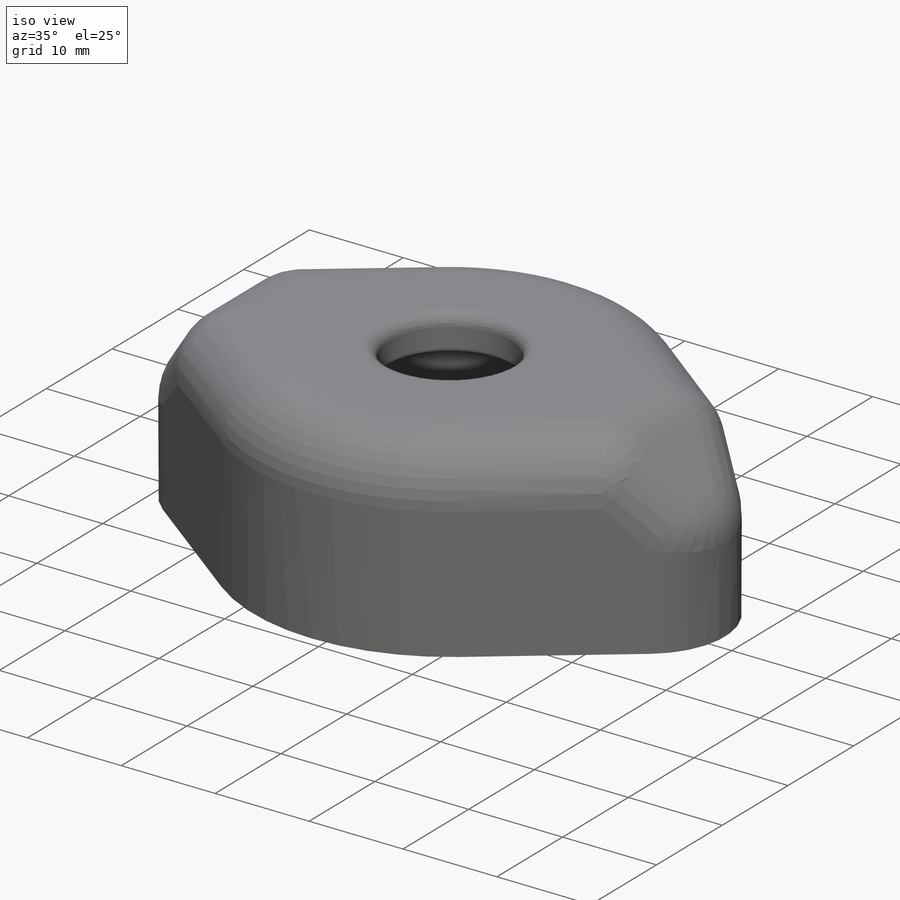
[diagram: iso view]
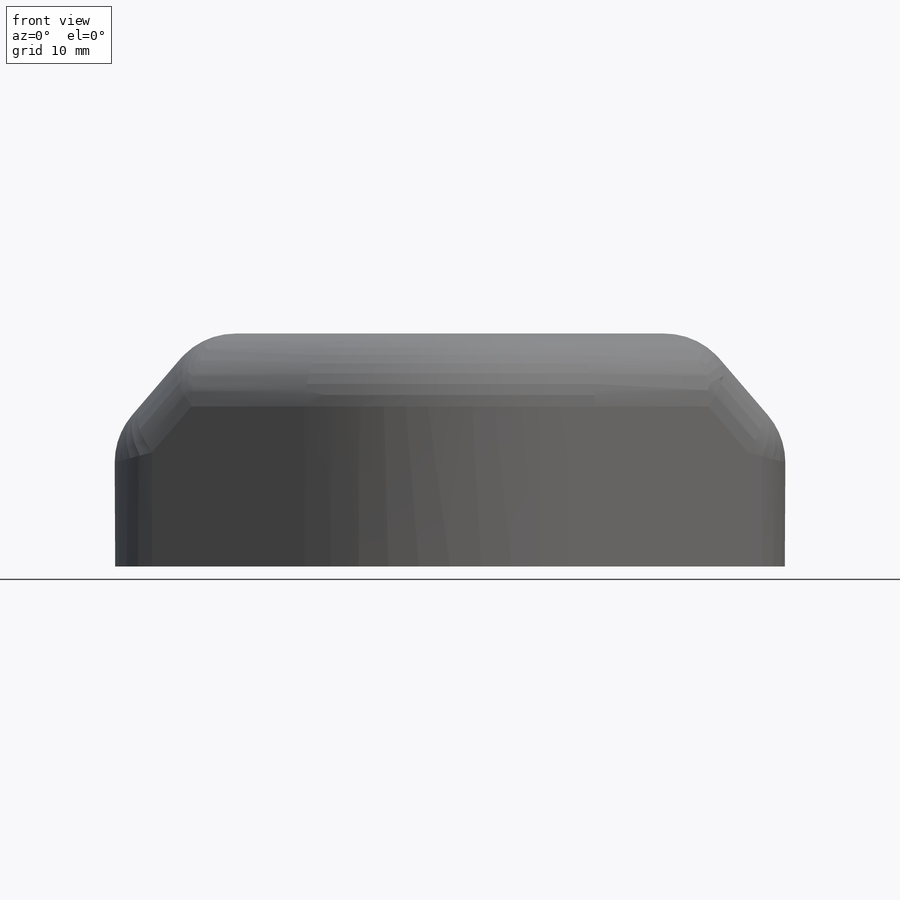
[diagram: front view]
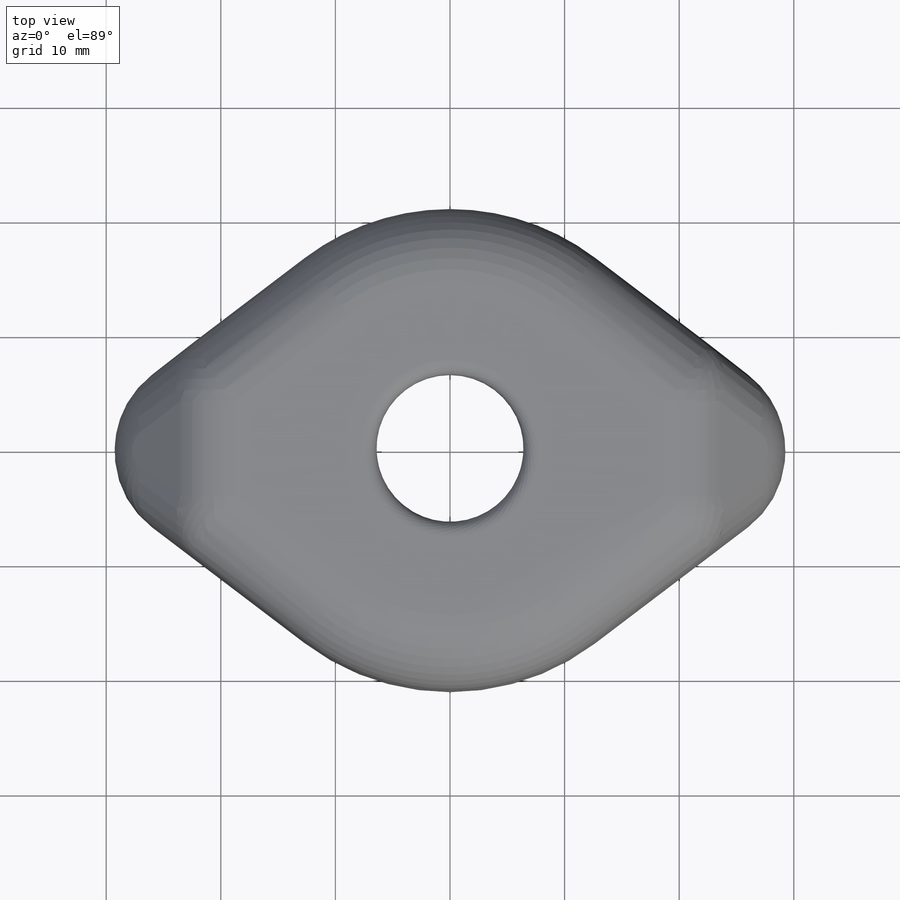
[diagram: top view]
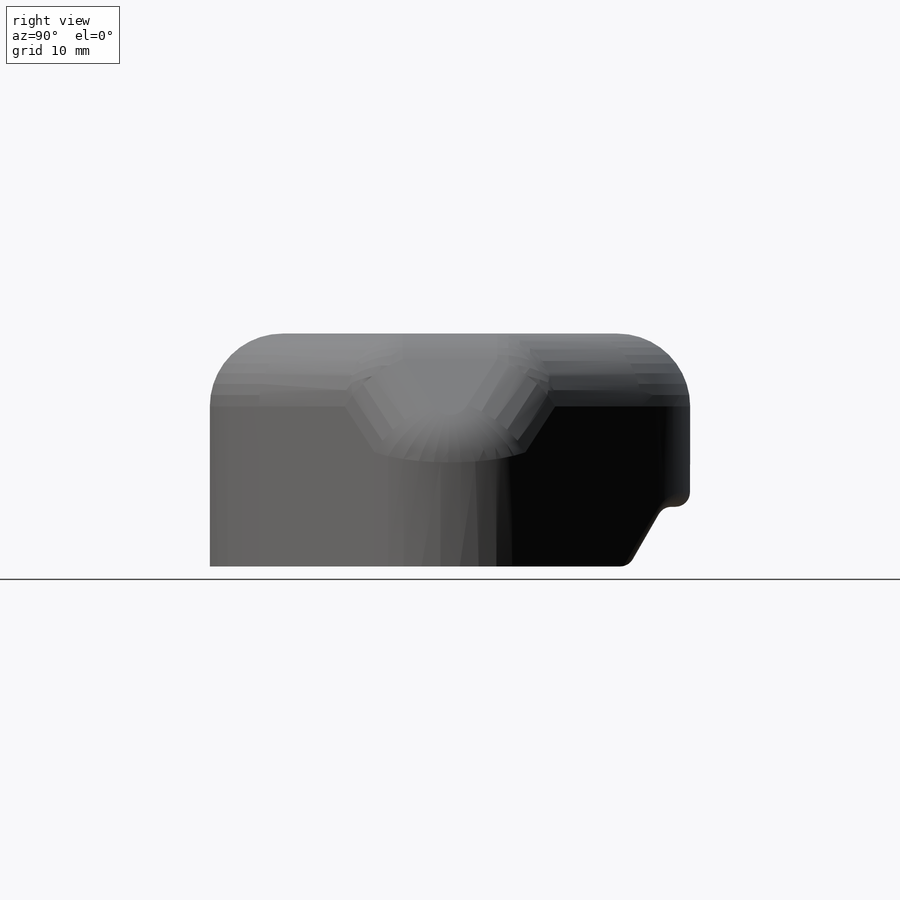
[diagram: right view]
SOLIDWORKS PART (.sldprt)
format: sldprt  version: not decoded by parser v0  size: 594,432 bytes
history: native  units: mm
features: fillet x10, sketch x8, cut_extrude x5, extrude x3, material x1, mirror x1 (+14 scaffold rows collapsed)
feature tree (42):
  scaffold x14  (default folders/planes/origin — collapsed)
  material  "ABS"
  sketch  "Sketch1"  dims[c1.D1=~10.459792mm c1.D2=4.7625mm c1.D3=12.827mm c1.D4=41.91mm c1.D5=16.51mm c1.D6=3.175mm c2.D1=42.0mm c2.D6=13.208mm]
  extrude  "Boss-Extrude1"  Depth=20.32mm
  sketch  "Sketch5"  dims[c1.D1=35.56mm c1.D2=10.16mm c1.D3=21.0mm c2.D1=2.54mm]
  cut_extrude  "Cut-Extrude5"  Depth=16.51mm
  fillet  "Fillet6"  Radius=1.27mm
  fillet  "Fillet7"  Radius=0.508mm
  sketch  "Sketch7"  dims[D1=7.62mm D2=8.89mm]
  cut_extrude  "Cut-Extrude6"  [1 undecoded]
  sketch  "Sketch9"  dims[D1=0.0mm]
  extrude  "Boss-Extrude3"  Depth=1.5875mm
  mirror  "Mirror3"
  fillet  "Fillet8"  Radius=5.08mm
  fillet  "Fillet9"  Radius=6.35mm
  sketch  "Sketch11"  dims[c1.D1=2.54mm c1.D3=1.0mm c1.D4=7.5mm c1.D5=5.0mm c1.D6=6.35mm c1.D7=5.08mm c1.D8=~16.825932mm c2.D8=30.0deg c2.D10=~15.954668mm c2.D11=17.78mm c2.D12=17.272mm c2.D13=3.81mm c2.D14=~12.204668mm c2.D3=1.4mm c2.D2=0.0mm c2.D9=0.0mm]
  extrude  "Boss-Extrude4"  Depth=8mm
  sketch  "Sketch12"  dims[D1=18.288mm D2=0.0mm]
  cut_extrude  "Cut-Extrude20"  [1 undecoded]
  fillet  "Fillet14"  Radius=6.35mm
  fillet  "Fillet15"  Radius=7.62mm
  fillet  "Fillet16"  Radius=0.127mm
  sketch  "Sketch13"  dims[c1.D1=~2.530259mm c2.D1=60.0deg]
  cut_extrude  "Cut-Extrude21"  Depth=30.48mm
  fillet  "Fillet17"  Radius=2.54mm
  fillet  "Fillet18"  Radius=2.54mm
  sketch  "Sketch14"  dims[c1.D1=~5.726018mm c2.D1=140.0deg c3.D1=~6.331876mm c4.D1=120.0deg c4.D2=0.254mm c4.D3=0.254mm c5.D1=0.254mm]
  cut_extrude  "Cut-Extrude22"  Depth=36.322mm
  fillet  "Fillet19"  Radius=1.27mm Thickness=1.27mm
decode coverage: 24 of 27 modeling features carry decoded parameters
note: ~ marks probable driven/reference dimensions
note: 2 parameter values undecoded
note: suppression state not decoded; provenance and decode notes live in map.json
